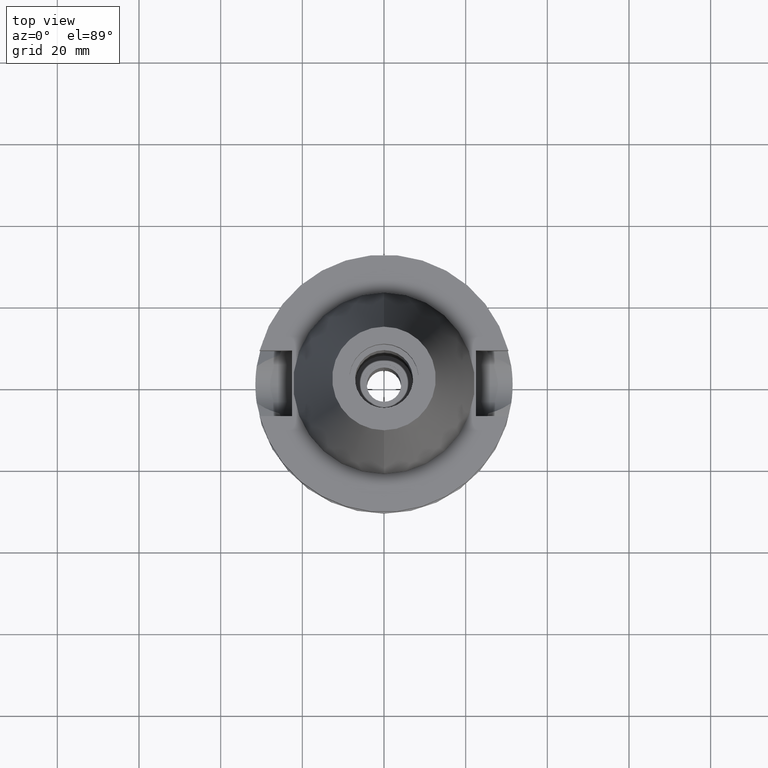
[diagram: clean part render]
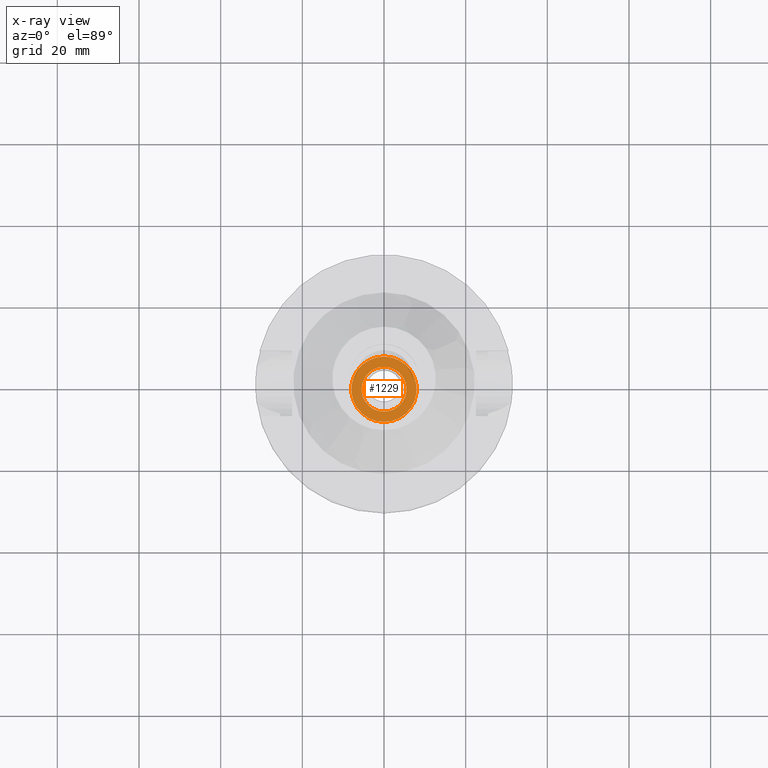
[diagram: x-ray — body ghosted, one internal face saturated and labeled with its STEP entity id]
A machine part, top view, then the same camera in x-ray: the body is ghosted and one INTERNAL B-rep face — a face not visible from any outside direction — is saturated and labeled: STEP entity #1229.
In plain terms, the highlighted planar face has unit normal (0, 0, -1).
Its self-contained STEP definition (entity closure, byte-faithful):
#32 = DIRECTION ( 'NONE',  ( 0.0000000000000000000, 0.0000000000000000000, 1.000000000000000000 ) ) ;
#41 = CARTESIAN_POINT ( 'NONE',  ( 0.0000000000000000000, -5.500000000000000000, -7.799999999999999822 ) ) ;
#133 = CIRCLE ( 'NONE', #678, 5.500000000000000000 ) ;
#230 = DIRECTION ( 'NONE',  ( 0.0000000000000000000, -1.000000000000000000, 0.0000000000000000000 ) ) ;
#420 = AXIS2_PLACEMENT_3D ( 'NONE', #2299, #2534, #3379 ) ;
#432 = DIRECTION ( 'NONE',  ( 0.0000000000000000000, 1.000000000000000000, 0.0000000000000000000 ) ) ;
#446 = CARTESIAN_POINT ( 'NONE',  ( 0.0000000000000000000, 8.000000000000000000, -7.799999999999999822 ) ) ;
#534 = CARTESIAN_POINT ( 'NONE',  ( 0.0000000000000000000, -8.000000000000000000, -7.799999999999999822 ) ) ;
#547 = CARTESIAN_POINT ( 'NONE',  ( 0.0000000000000000000, 5.500000000000000000, -7.799999999999999822 ) ) ;
#678 = AXIS2_PLACEMENT_3D ( 'NONE', #2317, #3159, #1768 ) ;
#708 = ORIENTED_EDGE ( 'NONE', *, *, #2521, .F. ) ;
#735 = CIRCLE ( 'NONE', #2493, 8.000000000000000000 ) ;
#783 = FACE_OUTER_BOUND ( 'NONE', #1740, .T. ) ;
#809 = EDGE_CURVE ( 'NONE', #1415, #820, #3112, .T. ) ;
#820 = VERTEX_POINT ( 'NONE', #547 ) ;
#1171 = DIRECTION ( 'NONE',  ( 0.0000000000000000000, -1.000000000000000000, 0.0000000000000000000 ) ) ;
#1229 = ADVANCED_FACE ( 'NONE', ( #783, #3610 ), #1407, .F. ) ;
#1407 = PLANE ( 'NONE',  #420 ) ;
#1415 = VERTEX_POINT ( 'NONE', #41 ) ;
#1517 = AXIS2_PLACEMENT_3D ( 'NONE', #3413, #32, #1171 ) ;
#1591 = VERTEX_POINT ( 'NONE', #446 ) ;
#1635 = AXIS2_PLACEMENT_3D ( 'NONE', #3537, #2392, #432 ) ;
#1740 = EDGE_LOOP ( 'NONE', ( #3649, #2298 ) ) ;
#1768 = DIRECTION ( 'NONE',  ( 0.0000000000000000000, 1.000000000000000000, 0.0000000000000000000 ) ) ;
#1826 = EDGE_CURVE ( 'NONE', #3183, #1591, #735, .T. ) ;
#2146 = EDGE_CURVE ( 'NONE', #1591, #3183, #3041, .T. ) ;
#2298 = ORIENTED_EDGE ( 'NONE', *, *, #1826, .F. ) ;
#2299 = CARTESIAN_POINT ( 'NONE',  ( 0.0000000000000000000, 0.0000000000000000000, -7.799999999999999822 ) ) ;
#2317 = CARTESIAN_POINT ( 'NONE',  ( 0.0000000000000000000, 0.0000000000000000000, -7.799999999999999822 ) ) ;
#2392 = DIRECTION ( 'NONE',  ( 0.0000000000000000000, 0.0000000000000000000, -1.000000000000000000 ) ) ;
#2493 = AXIS2_PLACEMENT_3D ( 'NONE', #2835, #2776, #230 ) ;
#2521 = EDGE_CURVE ( 'NONE', #820, #1415, #133, .T. ) ;
#2534 = DIRECTION ( 'NONE',  ( 0.0000000000000000000, 0.0000000000000000000, -1.000000000000000000 ) ) ;
#2776 = DIRECTION ( 'NONE',  ( 0.0000000000000000000, 0.0000000000000000000, -1.000000000000000000 ) ) ;
#2835 = CARTESIAN_POINT ( 'NONE',  ( 0.0000000000000000000, 0.0000000000000000000, -7.799999999999999822 ) ) ;
#3018 = EDGE_LOOP ( 'NONE', ( #708, #3171 ) ) ;
#3041 = CIRCLE ( 'NONE', #1635, 8.000000000000000000 ) ;
#3112 = CIRCLE ( 'NONE', #1517, 5.500000000000000000 ) ;
#3159 = DIRECTION ( 'NONE',  ( 0.0000000000000000000, 0.0000000000000000000, 1.000000000000000000 ) ) ;
#3171 = ORIENTED_EDGE ( 'NONE', *, *, #809, .F. ) ;
#3183 = VERTEX_POINT ( 'NONE', #534 ) ;
#3379 = DIRECTION ( 'NONE',  ( 0.0000000000000000000, -1.000000000000000000, 0.0000000000000000000 ) ) ;
#3413 = CARTESIAN_POINT ( 'NONE',  ( 0.0000000000000000000, 0.0000000000000000000, -7.799999999999999822 ) ) ;
#3537 = CARTESIAN_POINT ( 'NONE',  ( 0.0000000000000000000, 0.0000000000000000000, -7.799999999999999822 ) ) ;
#3610 = FACE_BOUND ( 'NONE', #3018, .T. ) ;
#3649 = ORIENTED_EDGE ( 'NONE', *, *, #2146, .F. ) ;